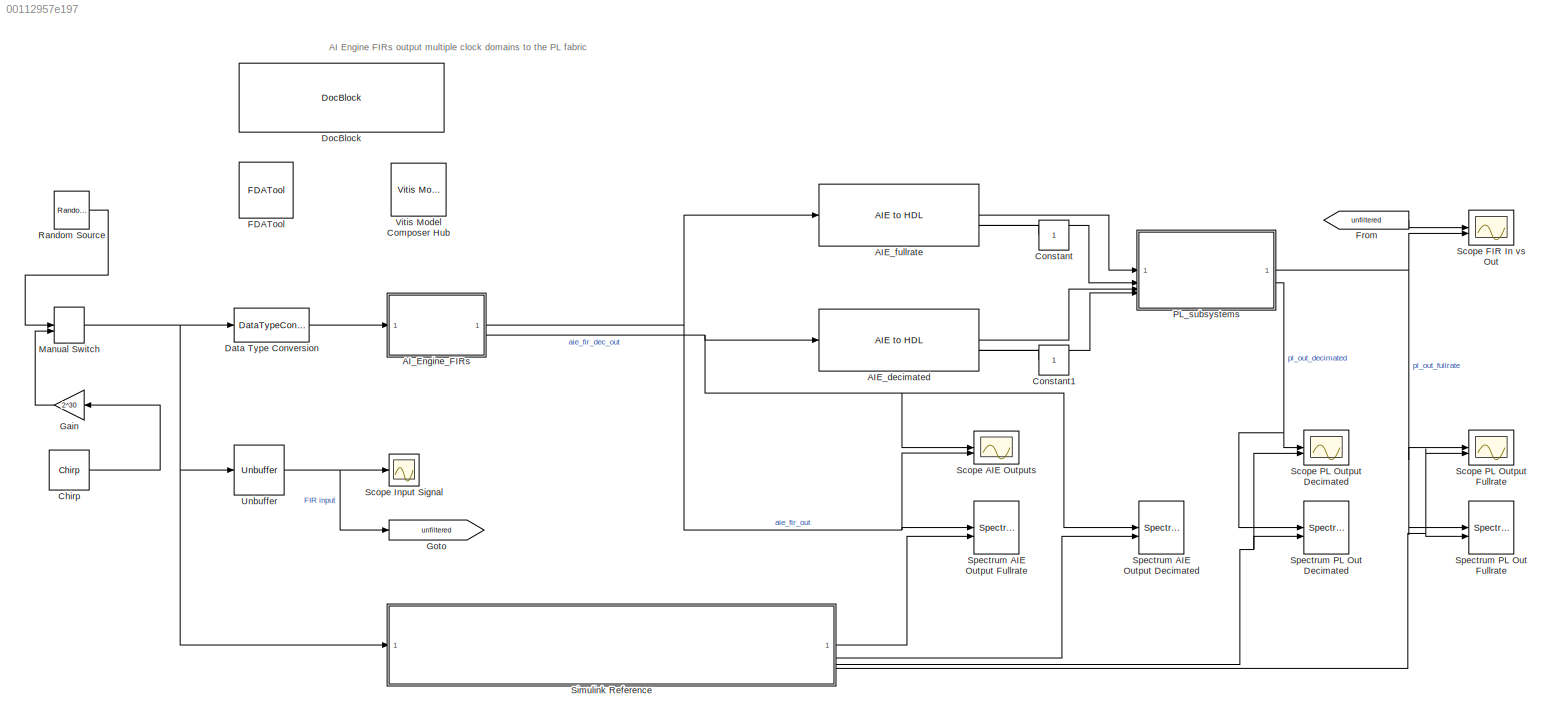
MODEL slx_00112957e197
KIND model
CONFIG AbsTol = auto
CONFIG EnableMultiTasking = off
CONFIG FixedStep = auto
CONFIG InitFcn = SAMPLE_PERIOD_SEC=1/200E6;
CONFIG MaxStep = auto
CONFIG MinStep = auto
CONFIG RelTol = 1e-3
CONFIG SampleTimeConstraint = Unconstrained
CONFIG SolverName = VariableStepAuto
CONFIG StartTime = 0.0
CONFIG StopTime = 0.0001
BLOCK [Reference] AIE_decimated  REF=aieUtilities/AIE to HDL
  SourceBlock = aieUtilities/AIE to HDL
  SourceType = AIE to HDL
BLOCK [Reference] AIE_fullrate  REF=aieUtilities/AIE to HDL
  SourceBlock = aieUtilities/AIE to HDL
  SourceType = AIE to HDL
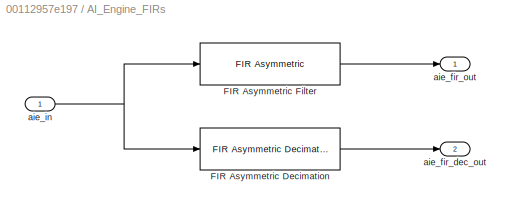
BLOCK [SubSystem] AI_Engine_FIRs
BLOCK [Reference] AI_Engine_FIRs/FIR Asymmetric Decimation  REF=aieDSP/FIR Asymmetric Decimation
  SourceBlock = aieDSP/FIR Asymmetric Decimation
  SourceType = FIR Asymmetric Decimation
BLOCK [Reference] AI_Engine_FIRs/FIR Asymmetric Filter  REF=aieDSP/FIR Asymmetric
  SourceBlock = aieDSP/FIR Asymmetric
  SourceType = FIR Asymmetric
BLOCK [Outport] AI_Engine_FIRs/aie_fir_dec_out
  Port = 2
BLOCK [Outport] AI_Engine_FIRs/aie_fir_out
BLOCK [Inport] AI_Engine_FIRs/aie_in
BLOCK [Reference] Chirp  REF=dspsrcs4/Chirp
  SourceBlock = dspsrcs4/Chirp
  SourceType = Chirp
BLOCK [Constant] Constant
  OutDataTypeStr = boolean
BLOCK [Constant] Constant1
  OutDataTypeStr = boolean
BLOCK [DataTypeConversion] Data Type Conversion
  OutDataTypeStr = int32
  RndMeth = Floor
  SaturateOnIntegerOverflow = off
BLOCK [Reference] DocBlock  REF=simulink/Model-Wide
Utilities/DocBlock
  SourceBlock = simulink/Model-Wide\nUtilities/DocBlock
  SourceType = DocBlock
  UserDataPersistent = on
BLOCK [Reference] FDATool  REF=hdlUtilities/FDATool
  SourceBlock = hdlUtilities/FDATool
  SourceType = Xilinx FDATool Interface Block
  UserDataPersistent = on
BLOCK [From] From
  GotoTag = unfiltered
BLOCK [Gain] Gain
  Gain = 2^30
BLOCK [Goto] Goto
  GotoTag = unfiltered
BLOCK [ManualSwitch] Manual Switch
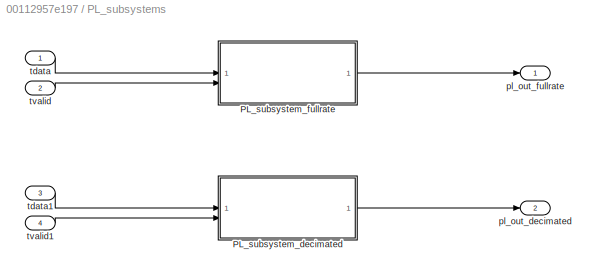
BLOCK [SubSystem] PL_subsystems
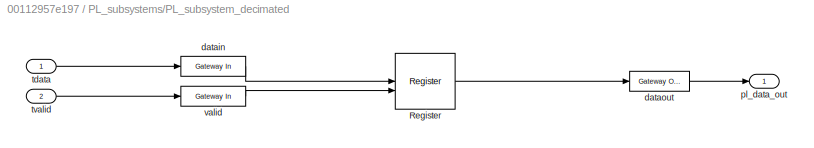
BLOCK [SubSystem] PL_subsystems/PL_subsystem_decimated
BLOCK [Reference] PL_subsystems/PL_subsystem_decimated/Register  REF=hdlBasic/Register
  SourceBlock = hdlBasic/Register
  SourceType = Register Block
BLOCK [Reference] PL_subsystems/PL_subsystem_decimated/datain  REF=hdlBasic/Gateway In
  NameLocation = top
  SourceBlock = hdlBasic/Gateway In
  SourceType = Gateway In Block
BLOCK [Reference] PL_subsystems/PL_subsystem_decimated/dataout  REF=hdlBasic/Gateway Out
  SourceBlock = hdlBasic/Gateway Out
  SourceType = Gateway Out Block
BLOCK [Outport] PL_subsystems/PL_subsystem_decimated/pl_data_out
BLOCK [Inport] PL_subsystems/PL_subsystem_decimated/tdata
BLOCK [Inport] PL_subsystems/PL_subsystem_decimated/tvalid
  Port = 2
BLOCK [Reference] PL_subsystems/PL_subsystem_decimated/valid  REF=hdlBasic/Gateway In
  SourceBlock = hdlBasic/Gateway In
  SourceType = Gateway In Block
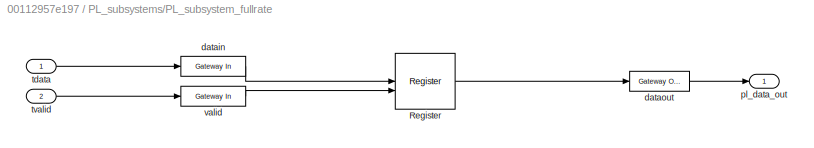
BLOCK [SubSystem] PL_subsystems/PL_subsystem_fullrate
BLOCK [Reference] PL_subsystems/PL_subsystem_fullrate/Register  REF=hdlBasic/Register
  SourceBlock = hdlBasic/Register
  SourceType = Register Block
BLOCK [Reference] PL_subsystems/PL_subsystem_fullrate/datain  REF=hdlBasic/Gateway In
  NameLocation = top
  SourceBlock = hdlBasic/Gateway In
  SourceType = Gateway In Block
BLOCK [Reference] PL_subsystems/PL_subsystem_fullrate/dataout  REF=hdlBasic/Gateway Out
  SourceBlock = hdlBasic/Gateway Out
  SourceType = Gateway Out Block
BLOCK [Outport] PL_subsystems/PL_subsystem_fullrate/pl_data_out
BLOCK [Inport] PL_subsystems/PL_subsystem_fullrate/tdata
BLOCK [Inport] PL_subsystems/PL_subsystem_fullrate/tvalid
  Port = 2
BLOCK [Reference] PL_subsystems/PL_subsystem_fullrate/valid  REF=hdlBasic/Gateway In
  SourceBlock = hdlBasic/Gateway In
  SourceType = Gateway In Block
BLOCK [Outport] PL_subsystems/pl_out_decimated
  Port = 2
BLOCK [Outport] PL_subsystems/pl_out_fullrate
BLOCK [Inport] PL_subsystems/tdata
BLOCK [Inport] PL_subsystems/tdata1
  Port = 3
BLOCK [Inport] PL_subsystems/tvalid
  Port = 2
BLOCK [Inport] PL_subsystems/tvalid1
  Port = 4
BLOCK [Reference] Random Source  REF=dspobslib/Random
Source
  SourceBlock = dspobslib/Random\nSource
  SourceType = Random Source Obsolete
  UserDataPersistent = on
BLOCK [Scope] Scope AIE Outputs
  Floating = off
  NumInputPorts = 2
  ScopeSpecificationString = Simulink.scopes.TimeScopeBlockCfg('CurrentConfiguration', extmgr.ConfigurationSet(extmgr.Configuration('Core','General UI',true,'DisplayFullSourceName',false,'ShowMainToolbar',true),extmgr.Configuration('Sources','WiredSimulink',true,'DataLogging',false,'DataLoggingVariableName','ScopeData1','DataLoggingLimitDataPoints',false,'DataLoggingMaxPoints','5000','DataLoggingDecimateData',false,'DataLoggi...<+2034ch>
BLOCK [Scope] Scope FIR In vs Out
  Floating = off
  NumInputPorts = 2
  ScopeSpecificationString = Simulink.scopes.TimeScopeBlockCfg('CurrentConfiguration', extmgr.ConfigurationSet(extmgr.Configuration('Core','General UI',true,'DisplayFullSourceName',false,'ShowMainToolbar',true),extmgr.Configuration('Sources','WiredSimulink',true,'DataLogging',false,'DataLoggingVariableName','ScopeData2','DataLoggingLimitDataPoints',false,'DataLoggingMaxPoints','5000','DataLoggingDecimateData',false,'DataLoggi...<+2012ch>
BLOCK [Scope] Scope Input Signal
  Floating = off
  NumInputPorts = 1
  ScopeSpecificationString = Simulink.scopes.TimeScopeBlockCfg('CurrentConfiguration', extmgr.ConfigurationSet(extmgr.Configuration('Core','General UI',true,'DisplayFullSourceName',false,'ShowMainToolbar',true),extmgr.Configuration('Sources','WiredSimulink',true,'DataLogging',false,'DataLoggingVariableName','ScopeData1','DataLoggingLimitDataPoints',false,'DataLoggingMaxPoints','5000','DataLoggingDecimateData',false,'DataLoggi...<+2014ch>
BLOCK [Scope] Scope PL Output Decimated
  Floating = off
  NumInputPorts = 2
  ScopeSpecificationString = Simulink.scopes.TimeScopeBlockCfg('CurrentConfiguration', extmgr.ConfigurationSet(extmgr.Configuration('Core','General UI',true,'DisplayFullSourceName',false,'ShowMainToolbar',true),extmgr.Configuration('Sources','WiredSimulink',true,'DataLogging',false,'DataLoggingVariableName','ScopeData1','DataLoggingLimitDataPoints',false,'DataLoggingMaxPoints','5000','DataLoggingDecimateData',false,'DataLoggi...<+2007ch>
BLOCK [Scope] Scope PL Output Fullrate
  Floating = off
  NumInputPorts = 2
  ScopeSpecificationString = Simulink.scopes.TimeScopeBlockCfg('CurrentConfiguration', extmgr.ConfigurationSet(extmgr.Configuration('Core','General UI',true,'DisplayFullSourceName',false,'ShowMainToolbar',true),extmgr.Configuration('Sources','WiredSimulink',true,'DataLogging',false,'DataLoggingVariableName','ScopeData','DataLoggingLimitDataPoints',false,'DataLoggingMaxPoints','5000','DataLoggingDecimateData',false,'DataLoggin...<+2020ch>
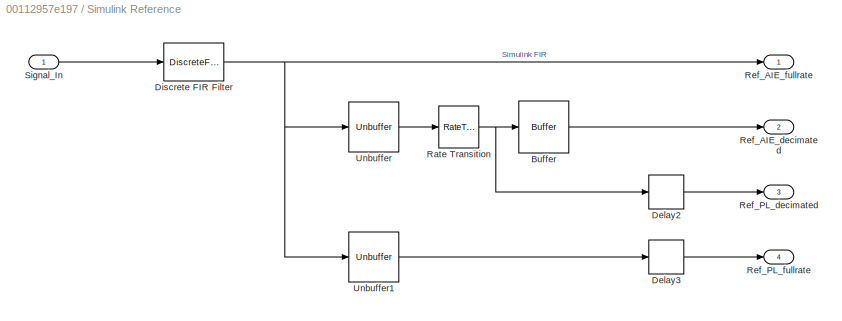
BLOCK [SubSystem] Simulink Reference
  NameLocation = top
BLOCK [Buffer] Simulink Reference/Buffer
  N = 128
  OutputFrames = off
BLOCK [Delay] Simulink Reference/Delay2
  DelayLength = 1
  InputPortMap = u0
BLOCK [Delay] Simulink Reference/Delay3
  DelayLength = 1
  InputPortMap = u0
BLOCK [DiscreteFir] Simulink Reference/Discrete FIR Filter
  Coefficients = xlfda_numerator(strcat(bdroot,'/FDATool'))
  InputPortMap = u0
  InputProcessing = Columns as channels (frame based)
  OutDataTypeStr = Inherit: Same as input
  OutputPortMap = o0
BLOCK [RateTransition] Simulink Reference/Rate Transition
  OutPortSampleTime = 1/100e6
  OutPortSampleTimeMultiple = 1/2
BLOCK [Outport] Simulink Reference/Ref_AIE_decimated
  NameLocation = top
  Port = 2
BLOCK [Outport] Simulink Reference/Ref_AIE_fullrate
  NameLocation = top
BLOCK [Outport] Simulink Reference/Ref_PL_decimated
  NameLocation = top
  Port = 3
BLOCK [Outport] Simulink Reference/Ref_PL_fullrate
  NameLocation = top
  Port = 4
BLOCK [Inport] Simulink Reference/Signal_In
BLOCK [Unbuffer] Simulink Reference/Unbuffer
BLOCK [Unbuffer] Simulink Reference/Unbuffer1
BLOCK [SpectrumAnalyzer] Spectrum AIE Output Decimated
  AllowFFTLengthLessThanSamplesPerUpdate = on
  AveragingMethod = Exponential
  CenterFrequency = 25000000
  ChannelNames = [""]
  DefaultConfigurationName = spbscopes.SpectrumAnalyzerBlockCfg
  GraphicalSettings = {"GraphicalSettings":{"SpectralMask":{"CustomReferenceLevel":"0","EnabledMasks":"None","LowerMask":"-Inf","MaskFrequencyOffset":"0","ReferenceLevel":"Custom","SelectedChannel":"1","UpperMask":"Inf"},"Style":{"AxesColor":"[0 0 0]","DefaultMarker":"none","DisplayName":"","LabelsColor":"[0.686274509803922 0.686274509803922 0.686274509803922]","Line":"1","LineColor":"[[1 1 0.0666666666666667],[0.07450...<+271ch>  <repeated x4 — deduplicated; at blocks: Spectrum AIE Output Decimated, Spectrum AIE Output Fullrate, Spectrum PL Out Decimated, Spectrum PL Out Fullrate>
  NumInputPorts = 2
  OpenAtSimulationStart = off
  PlotAsTwoSidedSpectrum = off
  SampleRate = 100000000
  ScopeSpecificationString = spbscopes.SpectrumAnalyzerBlockCfg('CurrentConfiguration', extmgr.ConfigurationSet(extmgr.Configuration('Core','General UI',true,'FigureColor',[0.16        0.16        0.16]),extmgr.Configuration('Visuals','Spectrum',true,'Title','','YLabel','','MinYLim','-53.8646','MaxYLim','54.5647','Legend',true,'AxesProperties',struct('XGrid',{'on','on'},'YGrid',{'on','on'},'ZGrid',{'on','on'},'Color',{[0 0 0]...<+2396ch>
  ShowLegend = on
  Span = 50000000
  StartFrequency = 0
  StopFrequency = 50000000
  Visible = on
  WasSavedAsWebScope = on
  WindowPosition = [960 33 796 446]
  YLimits = [-53.8646,54.5647]
BLOCK [SpectrumAnalyzer] Spectrum AIE Output Fullrate
  AllowFFTLengthLessThanSamplesPerUpdate = on
  AveragingMethod = Exponential
  CenterFrequency = 50000000
  ChannelNames = [""]
  DefaultConfigurationName = spbscopes.SpectrumAnalyzerBlockCfg
  NumInputPorts = 2
  OpenAtSimulationStart = off
  PlotAsTwoSidedSpectrum = off
  SampleRate = 200000000
  ScopeSpecificationString = spbscopes.SpectrumAnalyzerBlockCfg('CurrentConfiguration', extmgr.ConfigurationSet(extmgr.Configuration('Core','General UI',true,'FigureColor',[0.16        0.16        0.16]),extmgr.Configuration('Visuals','Spectrum',true,'Title','','YLabel','','MinYLim','-30.2073','MaxYLim','104.1879','Legend',true,'AxesProperties',struct('XGrid',{'on','on'},'YGrid',{'on','on'},'ZGrid',{'on','on'},'Color',{[0 0 0...<+2400ch>
  ShowLegend = on
  Span = 100000000
  StartFrequency = 0
  StopFrequency = 100000000
  Visible = on
  WasSavedAsWebScope = on
  WindowPosition = [562 317 796 446]
  YLimits = [-30.2073,104.1879]
BLOCK [SpectrumAnalyzer] Spectrum PL Out Decimated
  AllowFFTLengthLessThanSamplesPerUpdate = on
  AveragingMethod = Exponential
  CenterFrequency = 25000000
  ChannelNames = [""]
  DefaultConfigurationName = spbscopes.SpectrumAnalyzerBlockCfg
  NumInputPorts = 2
  OpenAtSimulationStart = off
  PlotAsTwoSidedSpectrum = off
  SampleRate = 100000000
  ScopeSpecificationString = spbscopes.SpectrumAnalyzerBlockCfg('CurrentConfiguration', extmgr.ConfigurationSet(extmgr.Configuration('Core','General UI',true,'FigureColor',[0.16        0.16        0.16]),extmgr.Configuration('Visuals','Spectrum',true,'Title','','YLabel','','MinYLim','-54.0931','MaxYLim','54.532','Legend',true,'AxesProperties',struct('XGrid',{'on','on'},'YGrid',{'on','on'},'ZGrid',{'on','on'},'Color',{[0 0 0],...<+2396ch>
  ShowLegend = on
  Span = 50000000
  StartFrequency = 0
  StopFrequency = 50000000
  Visible = on
  WasSavedAsWebScope = on
  WindowPosition = [559 318 802 444]
  YLimits = [-54.0931,54.532]
BLOCK [SpectrumAnalyzer] Spectrum PL Out Fullrate
  AllowFFTLengthLessThanSamplesPerUpdate = on
  AveragingMethod = Exponential
  AxesScaling = Manual
  CenterFrequency = 50000000
  ChannelNames = [""]
  DefaultConfigurationName = spbscopes.SpectrumAnalyzerBlockCfg
  NumInputPorts = 2
  PlotAsTwoSidedSpectrum = off
  SampleRate = 200000000
  ScopeSpecificationString = spbscopes.SpectrumAnalyzerBlockCfg('CurrentConfiguration', extmgr.ConfigurationSet(extmgr.Configuration('Core','General UI',true,'FigureColor',[0.16        0.16        0.16]),extmgr.Configuration('Visuals','Spectrum',true,'Title','','YLabel','','MinYLim','-31.9987','MaxYLim','103.7104','Legend',true,'AxesProperties',struct('XGrid',{'on','on'},'YGrid',{'on','on'},'ZGrid',{'on','on'},'Color',{[0 0 0...<+2401ch>
  ShowLegend = on
  Span = 100000000
  StartFrequency = 0
  StopFrequency = 100000000
  Visible = on
  WasSavedAsWebScope = on
  WindowPosition = [565 320 790 440]
  YLimits = [-31.9987,103.7104]
BLOCK [Unbuffer] Unbuffer
BLOCK [Reference] Vitis Model Composer Hub  REF=vmcUtilities/Vitis Model Composer Hub
  SourceBlock = vmcUtilities/Vitis Model Composer Hub
  SourceType = VMC Hub
  Tag = genX
  UserDataPersistent = on
ANNOTATION (root): AI Engine FIRs output multiple clock domains to the PL fabric
LINE AIE_decimated:1 -> PL_subsystems:3
LINE AIE_decimated:2 -> PL_subsystems:4
LINE AIE_fullrate:1 -> PL_subsystems:1
LINE AIE_fullrate:2 -> PL_subsystems:2
LINE AI_Engine_FIRs/FIR Asymmetric Decimation:1 -> AI_Engine_FIRs/aie_fir_dec_out:1
LINE AI_Engine_FIRs/FIR Asymmetric Filter:1 -> AI_Engine_FIRs/aie_fir_out:1
NET AI_Engine_FIRs/aie_in:1 -> AI_Engine_FIRs/FIR Asymmetric Decimation:1, AI_Engine_FIRs/FIR Asymmetric Filter:1
NET AI_Engine_FIRs:1 -> AIE_fullrate:1, Scope AIE Outputs:2, Spectrum AIE Output Fullrate:1
NET AI_Engine_FIRs:2 -> AIE_decimated:1, Scope AIE Outputs:1, Spectrum AIE Output Decimated:1
LINE Chirp:1 -> Gain:1
LINE Constant1:1 -> AIE_decimated:2
LINE Constant:1 -> AIE_fullrate:2
LINE Data Type Conversion:1 -> AI_Engine_FIRs:1
LINE From:1 -> Scope FIR In vs Out:1
LINE Gain:1 -> Manual Switch:2
NET Manual Switch:1 -> Data Type Conversion:1, Simulink Reference:1, Unbuffer:1
LINE PL_subsystems/PL_subsystem_decimated/Register:1 -> PL_subsystems/PL_subsystem_decimated/dataout:1
LINE PL_subsystems/PL_subsystem_decimated/datain:1 -> PL_subsystems/PL_subsystem_decimated/Register:1
LINE PL_subsystems/PL_subsystem_decimated/dataout:1 -> PL_subsystems/PL_subsystem_decimated/pl_data_out:1
LINE PL_subsystems/PL_subsystem_decimated/tdata:1 -> PL_subsystems/PL_subsystem_decimated/datain:1
LINE PL_subsystems/PL_subsystem_decimated/tvalid:1 -> PL_subsystems/PL_subsystem_decimated/valid:1
LINE PL_subsystems/PL_subsystem_decimated/valid:1 -> PL_subsystems/PL_subsystem_decimated/Register:2
LINE PL_subsystems/PL_subsystem_decimated:1 -> PL_subsystems/pl_out_decimated:1
LINE PL_subsystems/PL_subsystem_fullrate/Register:1 -> PL_subsystems/PL_subsystem_fullrate/dataout:1
LINE PL_subsystems/PL_subsystem_fullrate/datain:1 -> PL_subsystems/PL_subsystem_fullrate/Register:1
LINE PL_subsystems/PL_subsystem_fullrate/dataout:1 -> PL_subsystems/PL_subsystem_fullrate/pl_data_out:1
LINE PL_subsystems/PL_subsystem_fullrate/tdata:1 -> PL_subsystems/PL_subsystem_fullrate/datain:1
LINE PL_subsystems/PL_subsystem_fullrate/tvalid:1 -> PL_subsystems/PL_subsystem_fullrate/valid:1
LINE PL_subsystems/PL_subsystem_fullrate/valid:1 -> PL_subsystems/PL_subsystem_fullrate/Register:2
LINE PL_subsystems/PL_subsystem_fullrate:1 -> PL_subsystems/pl_out_fullrate:1
LINE PL_subsystems/tdata1:1 -> PL_subsystems/PL_subsystem_decimated:1
LINE PL_subsystems/tdata:1 -> PL_subsystems/PL_subsystem_fullrate:1
LINE PL_subsystems/tvalid1:1 -> PL_subsystems/PL_subsystem_decimated:2
LINE PL_subsystems/tvalid:1 -> PL_subsystems/PL_subsystem_fullrate:2
NET PL_subsystems:1 -> Scope FIR In vs Out:2, Scope PL Output Fullrate:1, Spectrum PL Out Fullrate:1
NET PL_subsystems:2 -> Scope PL Output Decimated:1, Spectrum PL Out Decimated:1
LINE Random Source:1 -> Manual Switch:1
LINE Simulink Reference/Buffer:1 -> Simulink Reference/Ref_AIE_decimated:1
LINE Simulink Reference/Delay2:1 -> Simulink Reference/Ref_PL_decimated:1
LINE Simulink Reference/Delay3:1 -> Simulink Reference/Ref_PL_fullrate:1
NET Simulink Reference/Discrete FIR Filter:1 -> Simulink Reference/Ref_AIE_fullrate:1, Simulink Reference/Unbuffer1:1, Simulink Reference/Unbuffer:1
NET Simulink Reference/Rate Transition:1 -> Simulink Reference/Buffer:1, Simulink Reference/Delay2:1
LINE Simulink Reference/Signal_In:1 -> Simulink Reference/Discrete FIR Filter:1
LINE Simulink Reference/Unbuffer1:1 -> Simulink Reference/Delay3:1
LINE Simulink Reference/Unbuffer:1 -> Simulink Reference/Rate Transition:1
LINE Simulink Reference:1 -> Spectrum AIE Output Fullrate:2
LINE Simulink Reference:2 -> Spectrum AIE Output Decimated:2
NET Simulink Reference:3 -> Scope PL Output Decimated:2, Spectrum PL Out Decimated:2
NET Simulink Reference:4 -> Scope PL Output Fullrate:2, Spectrum PL Out Fullrate:2
NET Unbuffer:1 -> Goto:1, Scope Input Signal:1
note: NET lines group one-source signal fan-out (src -> all destinations, sorted); 1:1 wires keep LINE
